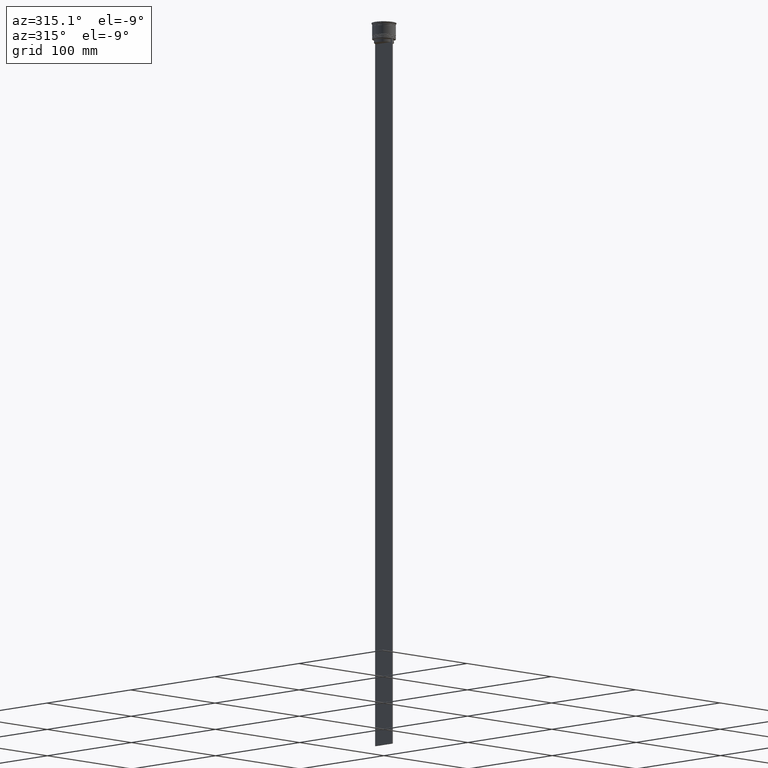
[diagram: clean part render]
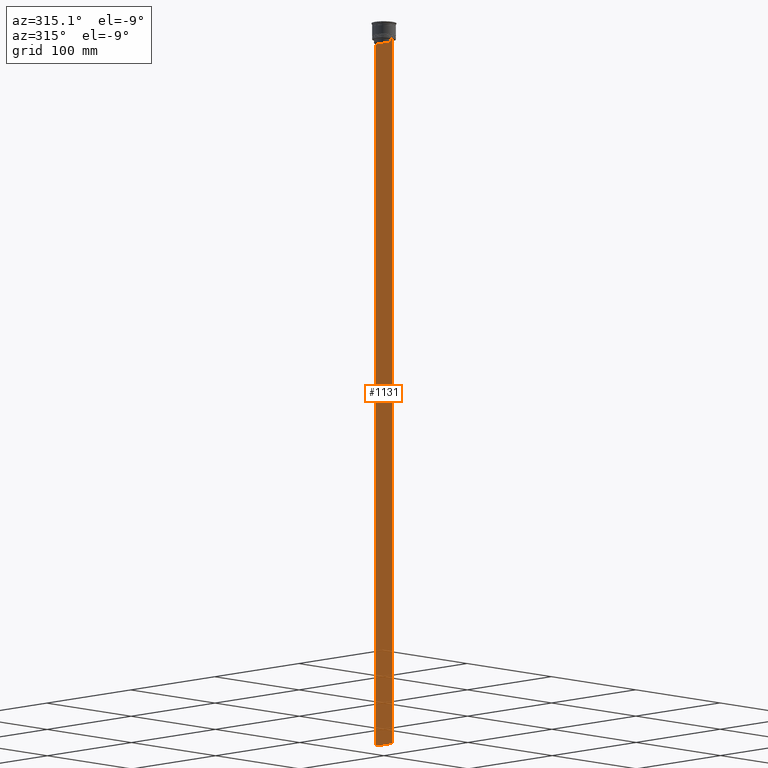
[diagram: same view with one face highlighted and labeled with its STEP entity id]
A machine part, auxiliary view. The second image highlights one B-rep face of the part: STEP entity #1131.
In plain terms, the highlighted planar face has unit normal (-1, 0, 0).
Its self-contained STEP definition (entity closure, byte-faithful):
#4 = EDGE_CURVE ( 'NONE', #1150, #2196, #2353, .T. ) ;
#5 = ORIENTED_EDGE ( 'NONE', *, *, #4, .F. ) ;
#8 = CARTESIAN_POINT ( 'NONE',  ( -0.5000000000000000000, -8.885943956609230199, -14.00000000000000178 ) ) ;
#10 = CARTESIAN_POINT ( 'NONE',  ( -0.5000000000000000000, -10.00000000000000178, -614.0000000000000000 ) ) ;
#23 = LINE ( 'NONE', #1666, #1847 ) ;
#25 = VERTEX_POINT ( 'NONE', #895 ) ;
#31 = CARTESIAN_POINT ( 'NONE',  ( -0.5000000000000000000, 8.385105843100616241, -14.50000000000000000 ) ) ;
#34 = EDGE_CURVE ( 'NONE', #2196, #25, #1484, .T. ) ;
#39 = DIRECTION ( 'NONE',  ( 0.000000000000000000, 0.000000000000000000, 1.000000000000000000 ) ) ;
#149 = VECTOR ( 'NONE', #1706, 1000.000000000000000 ) ;
#185 = VERTEX_POINT ( 'NONE', #359 ) ;
#253 = CARTESIAN_POINT ( 'NONE',  ( -0.5000000000000000000, -10.00000000000000178, -14.00000000000000178 ) ) ;
#283 = VERTEX_POINT ( 'NONE', #10 ) ;
#289 = B_SPLINE_CURVE_WITH_KNOTS ( 'NONE', 3,
 ( #2507, #2147, #2533, #678 ),
 .UNSPECIFIED., .F., .F.,
 ( 4, 4 ),
 ( 0.01511546479386908018, 0.01582316445439079997 ),
 .UNSPECIFIED. ) ;
#291 = VERTEX_POINT ( 'NONE', #2241 ) ;
#359 = CARTESIAN_POINT ( 'NONE',  ( -0.5000000000000000000, 9.999999999999998224, -614.0000000000000000 ) ) ;
#369 = CARTESIAN_POINT ( 'NONE',  ( -0.5000000000000000000, 8.385105843100616241, 0.000000000000000000 ) ) ;
#414 = CARTESIAN_POINT ( 'NONE',  ( -0.5000000000000000000, -8.552060194457769882, -14.33334167772667200 ) ) ;
#425 = VERTEX_POINT ( 'NONE', #1273 ) ;
#431 = ORIENTED_EDGE ( 'NONE', *, *, #1267, .F. ) ;
#514 = EDGE_CURVE ( 'NONE', #1102, #2043, #289, .T. ) ;
#517 = CARTESIAN_POINT ( 'NONE',  ( -0.5000000000000000000, 9.887365675446622149, -14.00000000000000178 ) ) ;
#518 = ORIENTED_EDGE ( 'NONE', *, *, #1868, .F. ) ;
#559 = DIRECTION ( 'NONE',  ( 0.000000000000000000, -1.000000000000000000, 0.000000000000000000 ) ) ;
#575 = VECTOR ( 'NONE', #620, 1000.000000000000000 ) ;
#585 = CARTESIAN_POINT ( 'NONE',  ( -0.5000000000000000000, -8.719005764482790966, -14.16667454151159689 ) ) ;
#586 = VERTEX_POINT ( 'NONE', #970 ) ;
#620 = DIRECTION ( 'NONE',  ( 0.000000000000000000, -1.000000000000000000, 0.000000000000000000 ) ) ;
#659 = VECTOR ( 'NONE', #719, 1000.000000000000000 ) ;
#678 = CARTESIAN_POINT ( 'NONE',  ( -0.5000000000000000000, 8.385105843100616241, -14.50000000000000000 ) ) ;
#709 = EDGE_CURVE ( 'NONE', #283, #185, #1069, .T. ) ;
#719 = DIRECTION ( 'NONE',  ( 0.000000000000000000, -1.000000000000000000, 0.000000000000000000 ) ) ;
#721 = EDGE_CURVE ( 'NONE', #291, #185, #2642, .T. ) ;
#740 = CARTESIAN_POINT ( 'NONE',  ( -0.5000000000000000000, -9.887365675446622149, -14.00000000000000178 ) ) ;
#819 = VECTOR ( 'NONE', #2600, 1000.000000000000000 ) ;
#833 = DIRECTION ( 'NONE',  ( -0.000000000000000000, -0.000000000000000000, 1.000000000000000000 ) ) ;
#857 = FACE_OUTER_BOUND ( 'NONE', #1595, .T. ) ;
#889 = VERTEX_POINT ( 'NONE', #927 ) ;
#895 = CARTESIAN_POINT ( 'NONE',  ( -0.5000000000000000000, -10.00000000000000178, -14.00000000000000178 ) ) ;
#927 = CARTESIAN_POINT ( 'NONE',  ( -0.5000000000000000000, -8.385105843100616241, -14.50000000000000000 ) ) ;
#941 = LINE ( 'NONE', #369, #819 ) ;
#970 = CARTESIAN_POINT ( 'NONE',  ( -0.5000000000000000000, 8.385105843100616241, -17.00000000000000000 ) ) ;
#1010 = DIRECTION ( 'NONE',  ( 0.000000000000000000, 0.000000000000000000, -1.000000000000000000 ) ) ;
#1011 = CARTESIAN_POINT ( 'NONE',  ( -0.5000000000000000000, -10.00000000000000178, -14.00000000000000178 ) ) ;
#1028 = PLANE ( 'NONE',  #1052 ) ;
#1052 = AXIS2_PLACEMENT_3D ( 'NONE', #1653, #2463, #39 ) ;
#1069 = LINE ( 'NONE', #2239, #2363 ) ;
#1102 = VERTEX_POINT ( 'NONE', #1276 ) ;
#1108 = CARTESIAN_POINT ( 'NONE',  ( -0.5000000000000000000, -10.00000000000000178, -14.00000000000000178 ) ) ;
#1131 = ADVANCED_FACE ( 'NONE', ( #857 ), #1028, .T. ) ;
#1150 = VERTEX_POINT ( 'NONE', #1249 ) ;
#1164 = VECTOR ( 'NONE', #833, 1000.000000000000000 ) ;
#1210 = LINE ( 'NONE', #1011, #575 ) ;
#1249 = CARTESIAN_POINT ( 'NONE',  ( -0.5000000000000000000, -8.885943956609230199, -14.00000000000000178 ) ) ;
#1267 = EDGE_CURVE ( 'NONE', #25, #283, #1707, .T. ) ;
#1273 = CARTESIAN_POINT ( 'NONE',  ( -0.5000000000000000000, -8.385105843100616241, -17.00000000000000000 ) ) ;
#1276 = CARTESIAN_POINT ( 'NONE',  ( -0.5000000000000000000, 8.885943956609230199, -14.00000000000000178 ) ) ;
#1308 = VECTOR ( 'NONE', #559, 1000.000000000000000 ) ;
#1316 = VECTOR ( 'NONE', #1010, 1000.000000000000000 ) ;
#1383 = ORIENTED_EDGE ( 'NONE', *, *, #34, .F. ) ;
#1413 = LINE ( 'NONE', #1658, #1164 ) ;
#1484 = LINE ( 'NONE', #1108, #659 ) ;
#1506 = ORIENTED_EDGE ( 'NONE', *, *, #1968, .F. ) ;
#1577 = LINE ( 'NONE', #2226, #1308 ) ;
#1595 = EDGE_LOOP ( 'NONE', ( #1859, #1688, #1506, #1889, #1948, #431, #1383, #5, #1974, #1647, #518, #2280 ) ) ;
#1624 = EDGE_CURVE ( 'NONE', #2666, #1102, #23, .T. ) ;
#1629 = DIRECTION ( 'NONE',  ( 0.000000000000000000, 1.000000000000000000, 0.000000000000000000 ) ) ;
#1647 = ORIENTED_EDGE ( 'NONE', *, *, #2403, .F. ) ;
#1653 = CARTESIAN_POINT ( 'NONE',  ( -0.5000000000000000000, -10.00000000000000178, 6.024984394500783047 ) ) ;
#1658 = CARTESIAN_POINT ( 'NONE',  ( -0.5000000000000000000, -8.385105843100616241, 0.000000000000000000 ) ) ;
#1666 = CARTESIAN_POINT ( 'NONE',  ( -0.5000000000000000000, -10.00000000000000178, -14.00000000000000178 ) ) ;
#1688 = ORIENTED_EDGE ( 'NONE', *, *, #1624, .F. ) ;
#1706 = DIRECTION ( 'NONE',  ( 0.000000000000000000, -1.000000000000000000, 0.000000000000000000 ) ) ;
#1707 = LINE ( 'NONE', #2178, #2060 ) ;
#1827 = CARTESIAN_POINT ( 'NONE',  ( -0.5000000000000000000, -8.385105843100616241, -14.50000000000000000 ) ) ;
#1847 = VECTOR ( 'NONE', #2499, 1000.000000000000000 ) ;
#1859 = ORIENTED_EDGE ( 'NONE', *, *, #514, .F. ) ;
#1868 = EDGE_CURVE ( 'NONE', #586, #425, #1577, .T. ) ;
#1889 = ORIENTED_EDGE ( 'NONE', *, *, #721, .T. ) ;
#1948 = ORIENTED_EDGE ( 'NONE', *, *, #709, .F. ) ;
#1968 = EDGE_CURVE ( 'NONE', #291, #2666, #1210, .T. ) ;
#1974 = ORIENTED_EDGE ( 'NONE', *, *, #1996, .F. ) ;
#1996 = EDGE_CURVE ( 'NONE', #889, #1150, #2345, .T. ) ;
#2043 = VERTEX_POINT ( 'NONE', #31 ) ;
#2060 = VECTOR ( 'NONE', #2539, 1000.000000000000000 ) ;
#2147 = CARTESIAN_POINT ( 'NONE',  ( -0.5000000000000000000, 8.719005771582351016, -14.16667453442324742 ) ) ;
#2178 = CARTESIAN_POINT ( 'NONE',  ( -0.5000000000000000000, -10.00000000000000178, 6.024984394500783047 ) ) ;
#2196 = VERTEX_POINT ( 'NONE', #740 ) ;
#2226 = CARTESIAN_POINT ( 'NONE',  ( -0.5000000000000000000, 8.400000000000003908, -17.00000000000000000 ) ) ;
#2239 = CARTESIAN_POINT ( 'NONE',  ( -0.5000000000000000000, -10.00000000000000178, -614.0000000000000000 ) ) ;
#2241 = CARTESIAN_POINT ( 'NONE',  ( -0.5000000000000000000, 9.999999999999994671, -14.00000000000000178 ) ) ;
#2280 = ORIENTED_EDGE ( 'NONE', *, *, #2303, .F. ) ;
#2303 = EDGE_CURVE ( 'NONE', #2043, #586, #941, .T. ) ;
#2345 = B_SPLINE_CURVE_WITH_KNOTS ( 'NONE', 3,
 ( #1827, #414, #585, #8 ),
 .UNSPECIFIED., .F., .F.,
 ( 4, 4 ),
 ( 0.03898465126933132324, 0.03969388910599660342 ),
 .UNSPECIFIED. ) ;
#2353 = LINE ( 'NONE', #253, #149 ) ;
#2363 = VECTOR ( 'NONE', #1629, 1000.000000000000000 ) ;
#2403 = EDGE_CURVE ( 'NONE', #425, #889, #1413, .T. ) ;
#2463 = DIRECTION ( 'NONE',  ( -1.000000000000000000, 0.000000000000000000, 0.000000000000000000 ) ) ;
#2499 = DIRECTION ( 'NONE',  ( 0.000000000000000000, -1.000000000000000000, 0.000000000000000000 ) ) ;
#2507 = CARTESIAN_POINT ( 'NONE',  ( -0.5000000000000000000, 8.885943956609230199, -14.00000000000000178 ) ) ;
#2533 = CARTESIAN_POINT ( 'NONE',  ( -0.5000000000000000000, 8.552060201981381837, -14.33334167021640226 ) ) ;
#2539 = DIRECTION ( 'NONE',  ( 0.000000000000000000, 0.000000000000000000, -1.000000000000000000 ) ) ;
#2600 = DIRECTION ( 'NONE',  ( 0.000000000000000000, 0.000000000000000000, -1.000000000000000000 ) ) ;
#2642 = LINE ( 'NONE', #2659, #1316 ) ;
#2659 = CARTESIAN_POINT ( 'NONE',  ( -0.5000000000000000000, 9.999999999999998224, 6.024984394500783047 ) ) ;
#2666 = VERTEX_POINT ( 'NONE', #517 ) ;